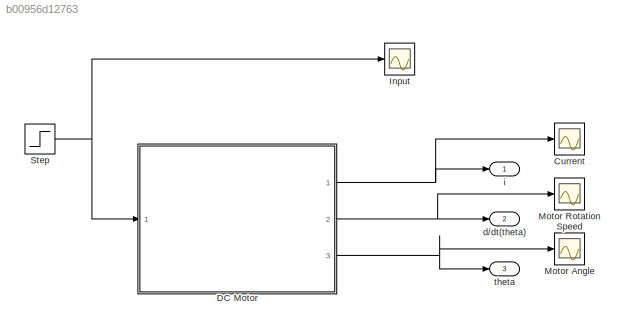
MODEL slx_b00956d12763
KIND model
CONFIG AbsTol = auto
CONFIG EnableMultiTasking = off
CONFIG FixedStep = auto
CONFIG MaxStep = auto
CONFIG MinStep = auto
CONFIG RelTol = 1e-3
CONFIG SampleTimeConstraint = Unconstrained
CONFIG Solver = VariableStepAuto
CONFIG SolverName = VariableStepAuto
CONFIG StartTime = 0.0
CONFIG StopTime = 0.1
BLOCK [Scope] Current
  NumInputPorts = 1
  Ports = [1]
  ScopeSpecificationString = Simulink.scopes.TimeScopeBlockCfg('CurrentConfiguration', extmgr.ConfigurationSet(extmgr.Configuration('Core','General UI',true),extmgr.Configuration('Core','Source UI',true),extmgr.Configuration('Sources','WiredSimulink',true,'DataLoggingVariableName','ScopeData1'),extmgr.Configuration('Visuals','Time Domain',true,'SerializedDisplays',{struct('MinYLimReal','-0.1562','MaxYLimReal','1.40577','YLabe...<+1405ch>
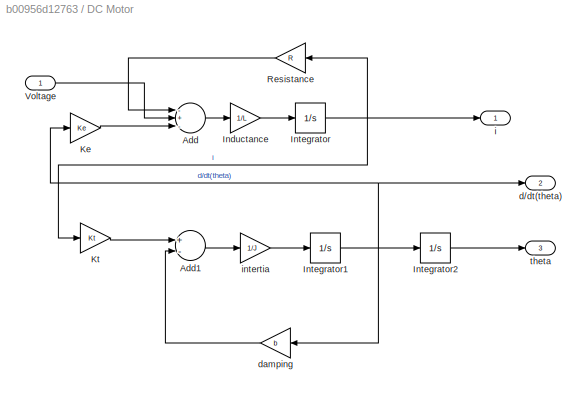
BLOCK [SubSystem] DC Motor
  Ports = [1, 3]
  RequestExecContextInheritance = off
  Variant = off
BLOCK [Sum] DC Motor/Add
  InputSameDT = off
  Inputs = -+-
  OutDataTypeStr = Inherit: Inherit via internal rule
  Ports = [3, 1]
  SaturateOnIntegerOverflow = off
BLOCK [Sum] DC Motor/Add1
  InputSameDT = off
  Inputs = +-
  OutDataTypeStr = Inherit: Inherit via internal rule
  Ports = [2, 1]
  SaturateOnIntegerOverflow = off
BLOCK [Gain] DC Motor/Inductance
  Gain = 1/L
  OutDataTypeStr = Inherit: Inherit via internal rule
  ParamDataTypeStr = Inherit: Inherit via internal rule
  SaturateOnIntegerOverflow = off
BLOCK [Integrator] DC Motor/Integrator
  Ports = [1, 1]
BLOCK [Integrator] DC Motor/Integrator1
  Ports = [1, 1]
BLOCK [Integrator] DC Motor/Integrator2
  Ports = [1, 1]
BLOCK [Gain] DC Motor/Ke
  Gain = Ke
  OutDataTypeStr = Inherit: Inherit via internal rule
  ParamDataTypeStr = Inherit: Inherit via internal rule
  SaturateOnIntegerOverflow = off
BLOCK [Gain] DC Motor/Kt
  Gain = Kt
  OutDataTypeStr = Inherit: Inherit via internal rule
  ParamDataTypeStr = Inherit: Inherit via internal rule
  SaturateOnIntegerOverflow = off
BLOCK [Gain] DC Motor/Resistance
  Gain = R
  OutDataTypeStr = Inherit: Inherit via internal rule
  ParamDataTypeStr = Inherit: Inherit via internal rule
  SaturateOnIntegerOverflow = off
BLOCK [Inport] DC Motor/Voltage
  IconDisplay = Port number
BLOCK [Outport] DC Motor/d//dt(theta)
  IconDisplay = Port number
  Port = 2
BLOCK [Gain] DC Motor/damping
  Gain = b
  OutDataTypeStr = Inherit: Inherit via internal rule
  ParamDataTypeStr = Inherit: Inherit via internal rule
  SaturateOnIntegerOverflow = off
BLOCK [Outport] DC Motor/i
  IconDisplay = Port number
BLOCK [Gain] DC Motor/intertia
  Gain = 1/J
  OutDataTypeStr = Inherit: Inherit via internal rule
  ParamDataTypeStr = Inherit: Inherit via internal rule
  SaturateOnIntegerOverflow = off
BLOCK [Outport] DC Motor/theta
  IconDisplay = Port number
  Port = 3
BLOCK [Scope] Input
  NumInputPorts = 1
  Ports = [1]
  ScopeSpecificationString = Simulink.scopes.TimeScopeBlockCfg('CurrentConfiguration', extmgr.ConfigurationSet(extmgr.Configuration('Core','General UI',true),extmgr.Configuration('Core','Source UI',true),extmgr.Configuration('Sources','WiredSimulink',true),extmgr.Configuration('Visuals','Time Domain',true,'SerializedDisplays',{struct('MinYLimReal','4.00000','MaxYLimReal','6.00000','YLabelReal','Voltage','MinYLimMag','4.00000'...<+1397ch>
BLOCK [Scope] Motor Angle
  NumInputPorts = 1
  Ports = [1]
  ScopeSpecificationString = Simulink.scopes.TimeScopeBlockCfg('CurrentConfiguration', extmgr.ConfigurationSet(extmgr.Configuration('Core','General UI',true),extmgr.Configuration('Core','Source UI',true),extmgr.Configuration('Sources','WiredSimulink',true,'DataLoggingVariableName','ScopeData3'),extmgr.Configuration('Visuals','Time Domain',true,'SerializedDisplays',{struct('MinYLimReal','-1.8621','MaxYLimReal','16.75894','YLab...<+1437ch>
BLOCK [Scope] Motor Rotation Speed
  NumInputPorts = 1
  Ports = [1]
  ScopeSpecificationString = Simulink.scopes.TimeScopeBlockCfg('CurrentConfiguration', extmgr.ConfigurationSet(extmgr.Configuration('Core','General UI',true),extmgr.Configuration('Core','Source UI',true),extmgr.Configuration('Sources','WiredSimulink',true,'DataLoggingVariableName','ScopeData2'),extmgr.Configuration('Visuals','Time Domain',true,'SerializedDisplays',{struct('MinYLimReal','-22.33179','MaxYLimReal','200.9861','YL...<+1473ch>
BLOCK [Step] Step
  After = 5
  SampleTime = 0
  Time = 0
BLOCK [Outport] d//dt(theta)
  IconDisplay = Port number
  Port = 2
BLOCK [Outport] i
  IconDisplay = Port number
BLOCK [Outport] theta
  IconDisplay = Port number
  Port = 3
LINE DC Motor/Add1:1 -> DC Motor/intertia:1
LINE DC Motor/Add:1 -> DC Motor/Inductance:1
LINE DC Motor/Inductance:1 -> DC Motor/Integrator:1
NET DC Motor/Integrator1:1 -> DC Motor/Integrator2:1, DC Motor/Ke:1, DC Motor/d//dt(theta):1, DC Motor/damping:1
LINE DC Motor/Integrator2:1 -> DC Motor/theta:1
NET DC Motor/Integrator:1 -> DC Motor/Kt:1, DC Motor/Resistance:1, DC Motor/i:1
LINE DC Motor/Ke:1 -> DC Motor/Add:3
LINE DC Motor/Kt:1 -> DC Motor/Add1:1
LINE DC Motor/Resistance:1 -> DC Motor/Add:1
LINE DC Motor/Voltage:1 -> DC Motor/Add:2
LINE DC Motor/damping:1 -> DC Motor/Add1:2
LINE DC Motor/intertia:1 -> DC Motor/Integrator1:1
NET DC Motor:1 -> Current:1, i:1
NET DC Motor:2 -> Motor Rotation Speed:1, d//dt(theta):1
NET DC Motor:3 -> Motor Angle:1, theta:1
NET Step:1 -> DC Motor:1, Input:1
note: NET lines group one-source signal fan-out (src -> all destinations, sorted); 1:1 wires keep LINE
